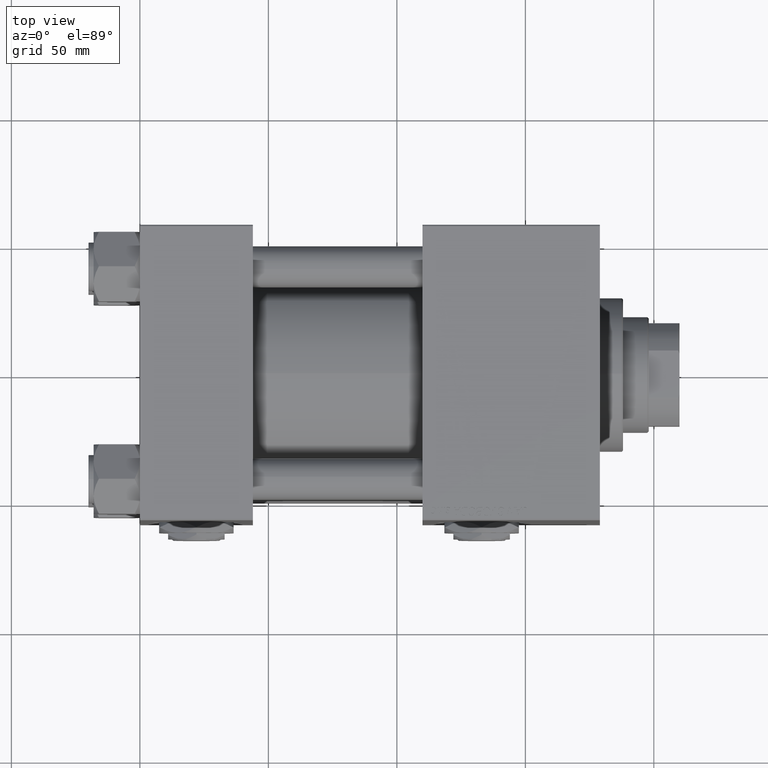
[diagram: clean part render]
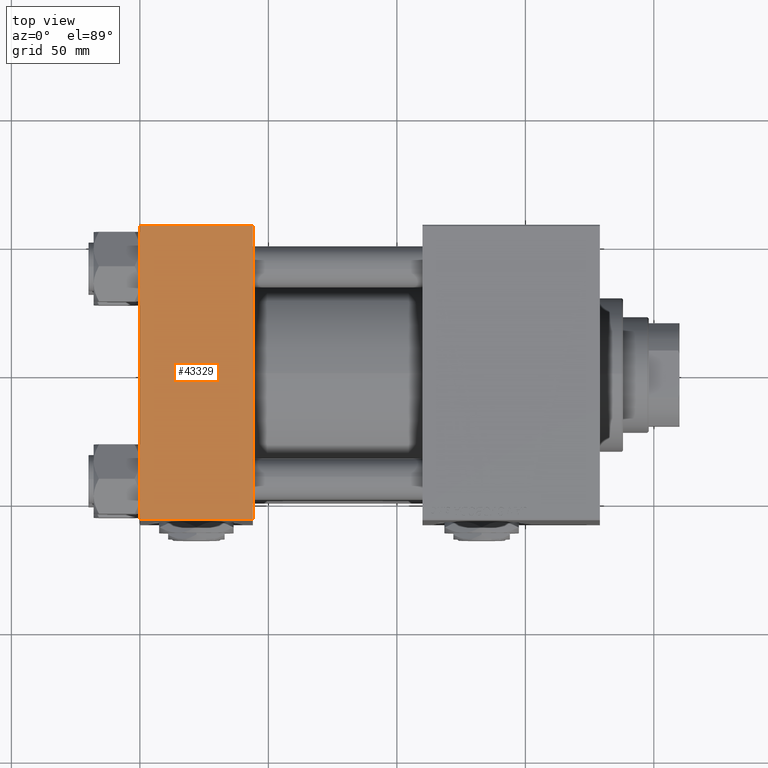
[diagram: same view with one face highlighted and labeled with its STEP entity id]
A machine part, top view. The second image highlights one B-rep face of the part: STEP entity #43329.
In plain terms, the highlighted planar face has unit normal (0, 0, -1).
Its self-contained STEP definition (entity closure, byte-faithful):
#2811 = AXIS2_PLACEMENT_3D ( 'NONE', #8209, #37061, #29039 ) ;
#3529 = CARTESIAN_POINT ( 'NONE',  ( 0.000000000000000000, -57.00000000000003553, 57.49999999999999289 ) ) ;
#3942 = FACE_OUTER_BOUND ( 'NONE', #20437, .T. ) ;
#4685 = VERTEX_POINT ( 'NONE', #42083 ) ;
#4690 = LINE ( 'NONE', #13230, #33397 ) ;
#5525 = ORIENTED_EDGE ( 'NONE', *, *, #11157, .F. ) ;
#5583 = ORIENTED_EDGE ( 'NONE', *, *, #7116, .T. ) ;
#7116 = EDGE_CURVE ( 'NONE', #33804, #4685, #28353, .T. ) ;
#8135 = CARTESIAN_POINT ( 'NONE',  ( 44.00000000000000000, 57.49999999999999289, 57.50000000000000711 ) ) ;
#8209 = CARTESIAN_POINT ( 'NONE',  ( 44.00000000000000000, 57.49999999999999289, 57.50000000000000711 ) ) ;
#9171 = VERTEX_POINT ( 'NONE', #42612 ) ;
#11157 = EDGE_CURVE ( 'NONE', #9171, #4685, #44481, .T. ) ;
#13230 = CARTESIAN_POINT ( 'NONE',  ( 0.000000000000000000, 57.00000000000000711, 57.50000000000000711 ) ) ;
#15578 = ORIENTED_EDGE ( 'NONE', *, *, #29343, .T. ) ;
#16067 = CARTESIAN_POINT ( 'NONE',  ( 44.00000000000000000, -57.00000000000003553, 57.49999999999999289 ) ) ;
#17947 = DIRECTION ( 'NONE',  ( 0.000000000000000000, -1.000000000000000000, -1.206764157201257045E-16 ) ) ;
#20437 = EDGE_LOOP ( 'NONE', ( #15578, #5583, #5525, #23574 ) ) ;
#22359 = VECTOR ( 'NONE', #32354, 1000.000000000000000 ) ;
#23574 = ORIENTED_EDGE ( 'NONE', *, *, #48794, .T. ) ;
#24441 = DIRECTION ( 'NONE',  ( 0.000000000000000000, -1.000000000000000000, -1.206764157201257045E-16 ) ) ;
#24516 = PLANE ( 'NONE',  #2811 ) ;
#26145 = CARTESIAN_POINT ( 'NONE',  ( 0.000000000000000000, 57.00000000000000711, 57.50000000000000711 ) ) ;
#28353 = LINE ( 'NONE', #16067, #22359 ) ;
#29039 = DIRECTION ( 'NONE',  ( 0.000000000000000000, 1.000000000000000000, 1.206764157201257045E-16 ) ) ;
#29343 = EDGE_CURVE ( 'NONE', #42980, #33804, #38001, .T. ) ;
#32354 = DIRECTION ( 'NONE',  ( 1.000000000000000000, 0.000000000000000000, 0.000000000000000000 ) ) ;
#33397 = VECTOR ( 'NONE', #45302, 1000.000000000000000 ) ;
#33629 = VECTOR ( 'NONE', #24441, 1000.000000000000000 ) ;
#33804 = VERTEX_POINT ( 'NONE', #3529 ) ;
#36585 = VECTOR ( 'NONE', #17947, 1000.000000000000000 ) ;
#37061 = DIRECTION ( 'NONE',  ( 0.000000000000000000, 1.206764157201257045E-16, -1.000000000000000000 ) ) ;
#38001 = LINE ( 'NONE', #50548, #36585 ) ;
#42083 = CARTESIAN_POINT ( 'NONE',  ( 44.00000000000000000, -57.00000000000003553, 57.49999999999999289 ) ) ;
#42612 = CARTESIAN_POINT ( 'NONE',  ( 44.00000000000000000, 57.00000000000000711, 57.50000000000000711 ) ) ;
#42980 = VERTEX_POINT ( 'NONE', #26145 ) ;
#43329 = ADVANCED_FACE ( 'NONE', ( #3942 ), #24516, .F. ) ;
#44481 = LINE ( 'NONE', #8135, #33629 ) ;
#45302 = DIRECTION ( 'NONE',  ( -1.000000000000000000, 0.000000000000000000, 0.000000000000000000 ) ) ;
#48794 = EDGE_CURVE ( 'NONE', #9171, #42980, #4690, .T. ) ;
#50548 = CARTESIAN_POINT ( 'NONE',  ( 0.000000000000000000, 57.49999999999999289, 57.50000000000000711 ) ) ;